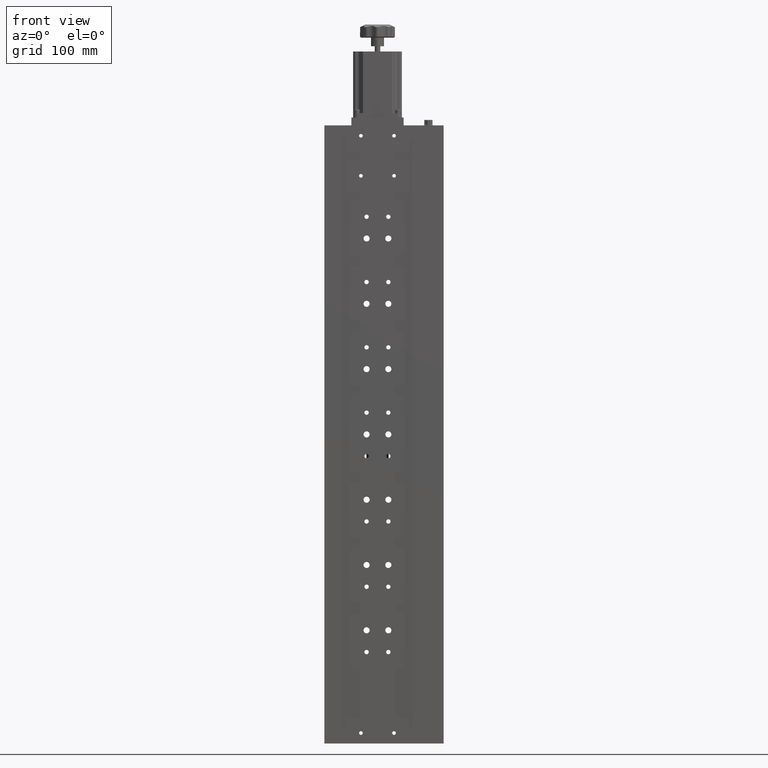
[diagram: clean part render]
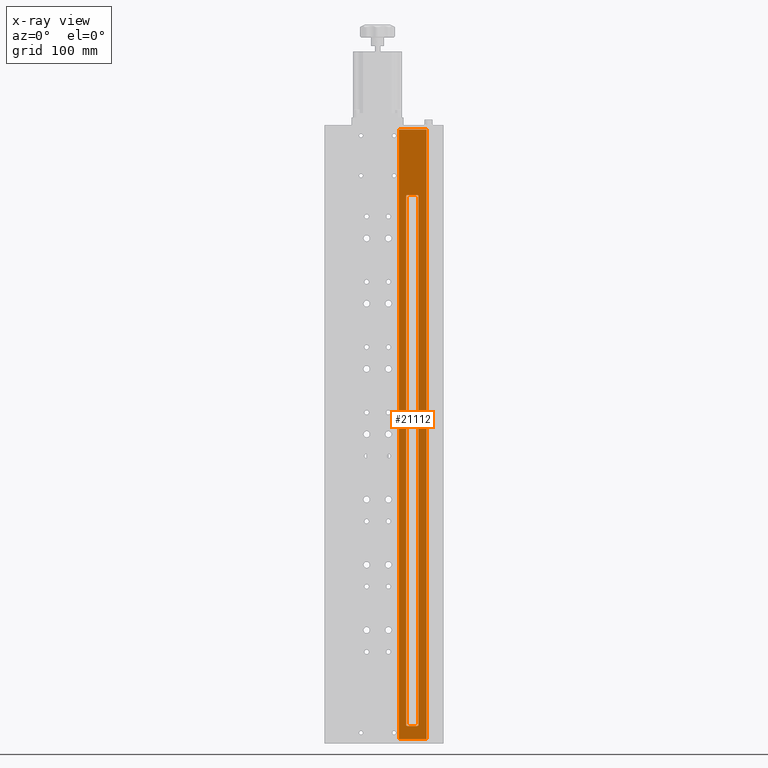
[diagram: x-ray — body ghosted, one internal face saturated and labeled with its STEP entity id]
A machine part, front view, then the same camera in x-ray: the body is ghosted and one INTERNAL B-rep face — a face not visible from any outside direction — is saturated and labeled: STEP entity #21112.
In plain terms, the highlighted planar face has unit normal (0, 1, 0).
Its self-contained STEP definition (entity closure, byte-faithful):
#207 = CARTESIAN_POINT ( 'NONE',  ( -101.7356926832512900, 31.82987360368544900, 26.16573236672331500 ) ) ;
#696 = CARTESIAN_POINT ( 'NONE',  ( -111.7356926832513000, 31.82987360368544900, 101.1657323667232800 ) ) ;
#739 = EDGE_CURVE ( 'NONE', #6144, #29323, #10678, .T. ) ;
#936 = CARTESIAN_POINT ( 'NONE',  ( -111.7356926832513000, 31.82987360368544900, -583.8342676332765700 ) ) ;
#1103 = DIRECTION ( 'NONE',  ( 0.0000000000000000000, 0.0000000000000000000, 1.000000000000000000 ) ) ;
#1395 = VERTEX_POINT ( 'NONE', #37298 ) ;
#1594 = ORIENTED_EDGE ( 'NONE', *, *, #35032, .F. ) ;
#2208 = CIRCLE ( 'NONE', #5032, 1.500000000000001300 ) ;
#2417 = EDGE_CURVE ( 'NONE', #27495, #38705, #5219, .T. ) ;
#3291 = CIRCLE ( 'NONE', #21337, 1.500000000000001300 ) ;
#3322 = AXIS2_PLACEMENT_3D ( 'NONE', #12666, #35000, #15838 ) ;
#3379 = ORIENTED_EDGE ( 'NONE', *, *, #33801, .T. ) ;
#3439 = VECTOR ( 'NONE', #19173, 1000.000000000000000 ) ;
#3487 = DIRECTION ( 'NONE',  ( -1.000000000000000000, 0.0000000000000000000, 0.0000000000000000000 ) ) ;
#3517 = VECTOR ( 'NONE', #33741, 1000.000000000000000 ) ;
#4212 = VECTOR ( 'NONE', #35660, 1000.000000000000000 ) ;
#5032 = AXIS2_PLACEMENT_3D ( 'NONE', #10055, #32430, #13293 ) ;
#5191 = VERTEX_POINT ( 'NONE', #696 ) ;
#5219 = LINE ( 'NONE', #22947, #4212 ) ;
#5436 = VECTOR ( 'NONE', #3487, 1000.000000000000000 ) ;
#5906 = EDGE_CURVE ( 'NONE', #39378, #10200, #20553, .T. ) ;
#6073 = DIRECTION ( 'NONE',  ( -0.0000000000000000000, -0.0000000000000000000, -1.000000000000000000 ) ) ;
#6144 = VERTEX_POINT ( 'NONE', #16527 ) ;
#6342 = EDGE_CURVE ( 'NONE', #29323, #1395, #32986, .T. ) ;
#6710 = CARTESIAN_POINT ( 'NONE',  ( -103.2356926832512900, 31.82987360368544900, -582.3342676332768000 ) ) ;
#7169 = VERTEX_POINT ( 'NONE', #28200 ) ;
#8341 = ORIENTED_EDGE ( 'NONE', *, *, #8492, .T. ) ;
#8492 = EDGE_CURVE ( 'NONE', #13103, #35200, #13858, .T. ) ;
#9511 = VECTOR ( 'NONE', #17435, 1000.000000000000000 ) ;
#9882 = CIRCLE ( 'NONE', #3322, 1.499999999999945800 ) ;
#9932 = EDGE_LOOP ( 'NONE', ( #8341, #34942, #1594, #30905 ) ) ;
#10055 = CARTESIAN_POINT ( 'NONE',  ( -101.7356926832512900, 31.82987360368544900, 24.66573236672331500 ) ) ;
#10104 = EDGE_CURVE ( 'NONE', #7169, #6144, #32632, .T. ) ;
#10200 = VERTEX_POINT ( 'NONE', #34720 ) ;
#10678 = CIRCLE ( 'NONE', #38652, 1.499999999999945800 ) ;
#11551 = DIRECTION ( 'NONE',  ( 0.0000000000000000000, 1.000000000000000000, 0.0000000000000000000 ) ) ;
#12666 = CARTESIAN_POINT ( 'NONE',  ( -101.7356926832512900, 31.82987360368544900, -582.3342676332766800 ) ) ;
#12999 = CARTESIAN_POINT ( 'NONE',  ( -111.7356926832513000, 31.82987360368544900, 101.1657323667232800 ) ) ;
#13103 = VERTEX_POINT ( 'NONE', #28240 ) ;
#13293 = DIRECTION ( 'NONE',  ( 0.0000000000000000000, 0.0000000000000000000, 1.000000000000000000 ) ) ;
#13465 = CARTESIAN_POINT ( 'NONE',  ( -79.73569268325130100, 31.82987360368544900, -598.8342676332768000 ) ) ;
#13717 = CARTESIAN_POINT ( 'NONE',  ( -111.7356926832513000, 31.82987360368544900, -598.8342676332768000 ) ) ;
#13858 = LINE ( 'NONE', #13717, #34311 ) ;
#15748 = CARTESIAN_POINT ( 'NONE',  ( -79.73569268325130100, 31.82987360368544900, 101.1657323667232800 ) ) ;
#15838 = DIRECTION ( 'NONE',  ( 0.0000000000000000000, 0.0000000000000000000, 1.000000000000000000 ) ) ;
#16189 = DIRECTION ( 'NONE',  ( 0.0000000000000000000, -0.0000000000000000000, 1.000000000000000000 ) ) ;
#16457 = ORIENTED_EDGE ( 'NONE', *, *, #38545, .T. ) ;
#16527 = CARTESIAN_POINT ( 'NONE',  ( -89.23569268325130100, 31.82987360368544900, -582.3342676332768000 ) ) ;
#16698 = VERTEX_POINT ( 'NONE', #17092 ) ;
#17092 = CARTESIAN_POINT ( 'NONE',  ( -79.73569268325130100, 31.82987360368544900, 101.1657323667232800 ) ) ;
#17435 = DIRECTION ( 'NONE',  ( -0.0000000000000000000, -0.0000000000000000000, -1.000000000000000000 ) ) ;
#19173 = DIRECTION ( 'NONE',  ( 1.000000000000000000, 0.0000000000000000000, 0.0000000000000000000 ) ) ;
#19207 = FACE_OUTER_BOUND ( 'NONE', #9932, .T. ) ;
#20553 = LINE ( 'NONE', #34972, #3517 ) ;
#21112 = ADVANCED_FACE ( 'NONE', ( #36222, #19207 ), #32005, .F. ) ;
#21337 = AXIS2_PLACEMENT_3D ( 'NONE', #30702, #11551, #33929 ) ;
#22131 = VECTOR ( 'NONE', #6073, 1000.000000000000000 ) ;
#22947 = CARTESIAN_POINT ( 'NONE',  ( -103.2356926832512900, 31.82987360368544900, 101.1657323667232800 ) ) ;
#23193 = DIRECTION ( 'NONE',  ( 0.0000000000000000000, 1.000000000000000000, 0.0000000000000000000 ) ) ;
#23600 = EDGE_LOOP ( 'NONE', ( #37770, #30063, #27315, #16457, #31863, #3379, #28079, #31373 ) ) ;
#26334 = CARTESIAN_POINT ( 'NONE',  ( -90.73569268325130100, 31.82987360368544900, -583.8342676332765700 ) ) ;
#27315 = ORIENTED_EDGE ( 'NONE', *, *, #6342, .T. ) ;
#27495 = VERTEX_POINT ( 'NONE', #6710 ) ;
#27951 = LINE ( 'NONE', #38323, #3439 ) ;
#28079 = ORIENTED_EDGE ( 'NONE', *, *, #5906, .T. ) ;
#28200 = CARTESIAN_POINT ( 'NONE',  ( -89.23569268325130100, 31.82987360368544900, 24.66573236672336800 ) ) ;
#28240 = CARTESIAN_POINT ( 'NONE',  ( -111.7356926832513000, 31.82987360368544900, -598.8342676332768000 ) ) ;
#29088 = AXIS2_PLACEMENT_3D ( 'NONE', #12999, #35330, #16189 ) ;
#29323 = VERTEX_POINT ( 'NONE', #26334 ) ;
#30063 = ORIENTED_EDGE ( 'NONE', *, *, #739, .T. ) ;
#30450 = EDGE_CURVE ( 'NONE', #5191, #13103, #34022, .T. ) ;
#30605 = LINE ( 'NONE', #15748, #22131 ) ;
#30702 = CARTESIAN_POINT ( 'NONE',  ( -90.73569268325130100, 31.82987360368544900, 24.66573236672336800 ) ) ;
#30905 = ORIENTED_EDGE ( 'NONE', *, *, #30450, .T. ) ;
#31373 = ORIENTED_EDGE ( 'NONE', *, *, #40594, .T. ) ;
#31619 = VECTOR ( 'NONE', #36674, 1000.000000000000000 ) ;
#31863 = ORIENTED_EDGE ( 'NONE', *, *, #2417, .T. ) ;
#32005 = PLANE ( 'NONE',  #29088 ) ;
#32430 = DIRECTION ( 'NONE',  ( 0.0000000000000000000, 1.000000000000000000, 0.0000000000000000000 ) ) ;
#32632 = LINE ( 'NONE', #36374, #31619 ) ;
#32986 = LINE ( 'NONE', #936, #5436 ) ;
#33741 = DIRECTION ( 'NONE',  ( 1.000000000000000000, 0.0000000000000000000, 0.0000000000000000000 ) ) ;
#33801 = EDGE_CURVE ( 'NONE', #38705, #39378, #2208, .T. ) ;
#33929 = DIRECTION ( 'NONE',  ( 0.0000000000000000000, 0.0000000000000000000, 1.000000000000000000 ) ) ;
#34022 = LINE ( 'NONE', #36612, #9511 ) ;
#34311 = VECTOR ( 'NONE', #41555, 1000.000000000000000 ) ;
#34720 = CARTESIAN_POINT ( 'NONE',  ( -90.73569268325130100, 31.82987360368544900, 26.16573236672331500 ) ) ;
#34942 = ORIENTED_EDGE ( 'NONE', *, *, #39809, .F. ) ;
#34972 = CARTESIAN_POINT ( 'NONE',  ( -111.7356926832513000, 31.82987360368544900, 26.16573236672331500 ) ) ;
#35000 = DIRECTION ( 'NONE',  ( 0.0000000000000000000, 1.000000000000000000, 0.0000000000000000000 ) ) ;
#35032 = EDGE_CURVE ( 'NONE', #5191, #16698, #27951, .T. ) ;
#35200 = VERTEX_POINT ( 'NONE', #13465 ) ;
#35330 = DIRECTION ( 'NONE',  ( 0.0000000000000000000, 1.000000000000000000, 0.0000000000000000000 ) ) ;
#35660 = DIRECTION ( 'NONE',  ( 0.0000000000000000000, -0.0000000000000000000, 1.000000000000000000 ) ) ;
#36222 = FACE_BOUND ( 'NONE', #23600, .T. ) ;
#36374 = CARTESIAN_POINT ( 'NONE',  ( -89.23569268325130100, 31.82987360368544900, 101.1657323667232800 ) ) ;
#36612 = CARTESIAN_POINT ( 'NONE',  ( -111.7356926832513000, 31.82987360368544900, 101.1657323667232800 ) ) ;
#36674 = DIRECTION ( 'NONE',  ( 1.137523590804463700E-017, 0.0000000000000000000, -1.000000000000000000 ) ) ;
#37298 = CARTESIAN_POINT ( 'NONE',  ( -101.7356926832512900, 31.82987360368544900, -583.8342676332765700 ) ) ;
#37770 = ORIENTED_EDGE ( 'NONE', *, *, #10104, .T. ) ;
#38323 = CARTESIAN_POINT ( 'NONE',  ( -111.7356926832513000, 31.82987360368544900, 101.1657323667232800 ) ) ;
#38545 = EDGE_CURVE ( 'NONE', #1395, #27495, #9882, .T. ) ;
#38652 = AXIS2_PLACEMENT_3D ( 'NONE', #39624, #23193, #1103 ) ;
#38705 = VERTEX_POINT ( 'NONE', #38757 ) ;
#38757 = CARTESIAN_POINT ( 'NONE',  ( -103.2356926832512900, 31.82987360368544900, 24.66573236672331500 ) ) ;
#39378 = VERTEX_POINT ( 'NONE', #207 ) ;
#39624 = CARTESIAN_POINT ( 'NONE',  ( -90.73569268325130100, 31.82987360368544900, -582.3342676332766800 ) ) ;
#39809 = EDGE_CURVE ( 'NONE', #16698, #35200, #30605, .T. ) ;
#40594 = EDGE_CURVE ( 'NONE', #10200, #7169, #3291, .T. ) ;
#41555 = DIRECTION ( 'NONE',  ( 1.000000000000000000, 0.0000000000000000000, 0.0000000000000000000 ) ) ;